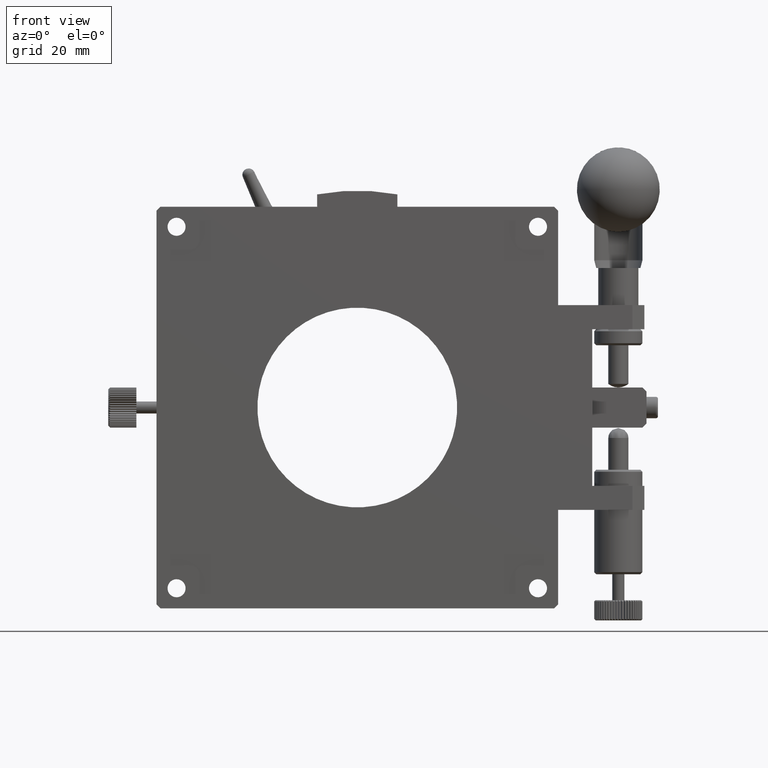
[diagram: clean part render]
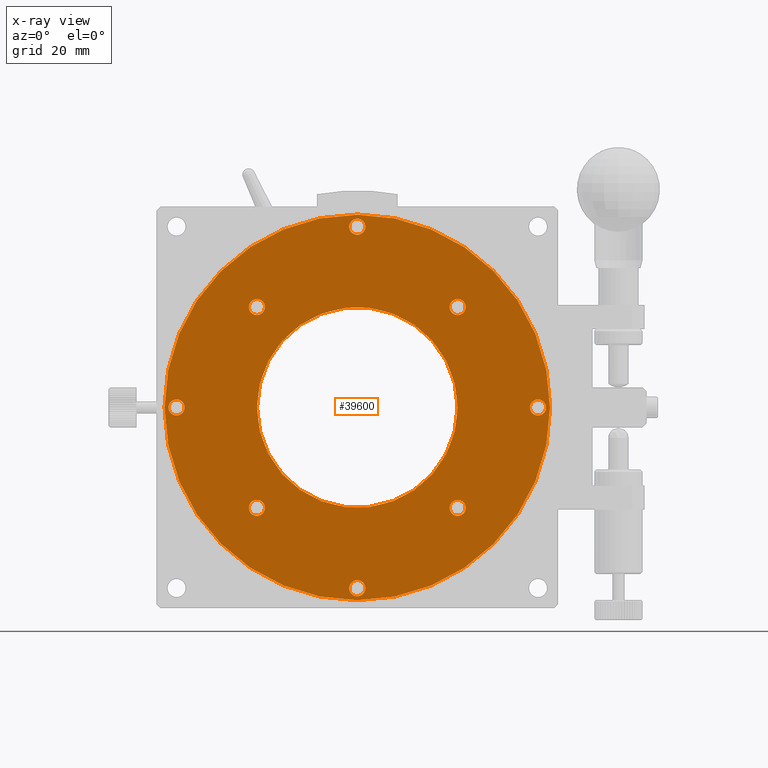
[diagram: x-ray — body ghosted, one internal face saturated and labeled with its STEP entity id]
A machine part, front view, then the same camera in x-ray: the body is ghosted and one INTERNAL B-rep face — a face not visible from any outside direction — is saturated and labeled: STEP entity #39600.
In plain terms, the highlighted planar face has unit normal (0, -1, -0).
Its self-contained STEP definition (entity closure, byte-faithful):
#254 = VERTEX_POINT ( 'NONE', #21192 ) ;
#580 = PLANE ( 'NONE',  #12101 ) ;
#1498 = DIRECTION ( 'NONE',  ( -0.000000000000000000, 1.000000000000000000, -0.000000000000000000 ) ) ;
#1528 = DIRECTION ( 'NONE',  ( -0.000000000000000000, 1.000000000000000000, -0.000000000000000000 ) ) ;
#1540 = FACE_BOUND ( 'NONE', #95973, .T. ) ;
#1689 = CARTESIAN_POINT ( 'NONE',  ( -25.00000000000000000, 8.000000000000000000, 0.000000000000000000 ) ) ;
#2006 = DIRECTION ( 'NONE',  ( -1.000000000000000000, 0.000000000000000000, 0.000000000000000000 ) ) ;
#2055 = AXIS2_PLACEMENT_3D ( 'NONE', #55066, #1498, #61448 ) ;
#2201 = DIRECTION ( 'NONE',  ( -1.000000000000000000, 0.000000000000000000, 0.000000000000000000 ) ) ;
#2276 = AXIS2_PLACEMENT_3D ( 'NONE', #71041, #86164, #2351 ) ;
#2351 = DIRECTION ( 'NONE',  ( -1.000000000000000000, 0.000000000000000000, 0.000000000000000000 ) ) ;
#2689 = EDGE_CURVE ( 'NONE', #254, #254, #23108, .T. ) ;
#2846 = AXIS2_PLACEMENT_3D ( 'NONE', #8532, #82671, #23180 ) ;
#5561 = EDGE_LOOP ( 'NONE', ( #41952 ) ) ;
#5871 = EDGE_CURVE ( 'NONE', #7067, #7067, #91822, .T. ) ;
#6229 = AXIS2_PLACEMENT_3D ( 'NONE', #46579, #91447, #2201 ) ;
#7067 = VERTEX_POINT ( 'NONE', #65128 ) ;
#8532 = CARTESIAN_POINT ( 'NONE',  ( 25.00000000000000000, 7.999999999981355359, -25.00000000000000000 ) ) ;
#9133 = EDGE_CURVE ( 'NONE', #14389, #14389, #93457, .T. ) ;
#9308 = FACE_BOUND ( 'NONE', #5561, .T. ) ;
#10585 = DIRECTION ( 'NONE',  ( -1.000000000000000000, 0.000000000000000000, 0.000000000000000000 ) ) ;
#11377 = VERTEX_POINT ( 'NONE', #41085 ) ;
#11936 = ORIENTED_EDGE ( 'NONE', *, *, #82375, .T. ) ;
#12101 = AXIS2_PLACEMENT_3D ( 'NONE', #60525, #37625, #76579 ) ;
#12200 = CIRCLE ( 'NONE', #52714, 25.00000000000000000 ) ;
#12480 = ORIENTED_EDGE ( 'NONE', *, *, #91264, .T. ) ;
#13088 = CIRCLE ( 'NONE', #2276, 2.000000000032288394 ) ;
#13144 = ORIENTED_EDGE ( 'NONE', *, *, #32230, .T. ) ;
#14389 = VERTEX_POINT ( 'NONE', #94904 ) ;
#17129 = FACE_BOUND ( 'NONE', #50714, .T. ) ;
#21192 = CARTESIAN_POINT ( 'NONE',  ( 22.99999999996771294, 7.999999999981355359, -25.00000000000000000 ) ) ;
#23108 = CIRCLE ( 'NONE', #2846, 2.000000000032288394 ) ;
#23149 = VERTEX_POINT ( 'NONE', #76264 ) ;
#23180 = DIRECTION ( 'NONE',  ( -1.000000000000000000, 0.000000000000000000, 0.000000000000000000 ) ) ;
#24428 = FACE_BOUND ( 'NONE', #25881, .T. ) ;
#24964 = DIRECTION ( 'NONE',  ( -1.000000000000000000, 0.000000000000000000, 0.000000000000000000 ) ) ;
#25881 = EDGE_LOOP ( 'NONE', ( #29991 ) ) ;
#26014 = CIRCLE ( 'NONE', #63415, 1.999999999952706276 ) ;
#29865 = EDGE_LOOP ( 'NONE', ( #54949 ) ) ;
#29991 = ORIENTED_EDGE ( 'NONE', *, *, #66042, .T. ) ;
#30020 = ORIENTED_EDGE ( 'NONE', *, *, #5871, .T. ) ;
#30592 = AXIS2_PLACEMENT_3D ( 'NONE', #91809, #78884, #24964 ) ;
#31261 = FACE_BOUND ( 'NONE', #79696, .T. ) ;
#31733 = FACE_BOUND ( 'NONE', #34600, .T. ) ;
#32230 = EDGE_CURVE ( 'NONE', #90445, #90445, #86630, .T. ) ;
#32805 = VERTEX_POINT ( 'NONE', #93308 ) ;
#33604 = ORIENTED_EDGE ( 'NONE', *, *, #69965, .T. ) ;
#34600 = EDGE_LOOP ( 'NONE', ( #82363 ) ) ;
#34743 = CARTESIAN_POINT ( 'NONE',  ( 42.99999999994952304, 8.000000000038198777, 0.000000000000000000 ) ) ;
#36694 = EDGE_CURVE ( 'NONE', #68022, #68022, #12200, .T. ) ;
#37625 = DIRECTION ( 'NONE',  ( 0.000000000000000000, -1.000000000000000000, -0.000000000000000000 ) ) ;
#39600 = ADVANCED_FACE ( 'NONE', ( #31733, #9308, #17129, #45905, #61487, #24428, #76120, #1540, #31261, #91255 ), #580, .T. ) ;
#40614 = CARTESIAN_POINT ( 'NONE',  ( -1.999999999952706276, 7.999999999981355359, 45.00000000000000000 ) ) ;
#41085 = CARTESIAN_POINT ( 'NONE',  ( -26.99999999992996891, 8.000000000038198777, 25.00000000000000000 ) ) ;
#41952 = ORIENTED_EDGE ( 'NONE', *, *, #2689, .T. ) ;
#42610 = CARTESIAN_POINT ( 'NONE',  ( -45.00000000000000000, 8.000000000038198777, 0.000000000000000000 ) ) ;
#45647 = CIRCLE ( 'NONE', #2055, 2.000000000050475180 ) ;
#45905 = FACE_BOUND ( 'NONE', #93711, .T. ) ;
#46579 = CARTESIAN_POINT ( 'NONE',  ( -25.00000000000000000, 8.000000000038198777, 25.00000000000000000 ) ) ;
#48258 = CIRCLE ( 'NONE', #6229, 1.999999999929967576 ) ;
#48906 = VERTEX_POINT ( 'NONE', #40614 ) ;
#50714 = EDGE_LOOP ( 'NONE', ( #12480 ) ) ;
#51206 = CIRCLE ( 'NONE', #79194, 48.00000000000000000 ) ;
#51438 = AXIS2_PLACEMENT_3D ( 'NONE', #83428, #1528, #2006 ) ;
#51747 = EDGE_CURVE ( 'NONE', #23149, #23149, #51206, .T. ) ;
#52714 = AXIS2_PLACEMENT_3D ( 'NONE', #53810, #68949, #84526 ) ;
#53810 = CARTESIAN_POINT ( 'NONE',  ( 0.000000000000000000, 8.000000000000000000, 0.000000000000000000 ) ) ;
#54949 = ORIENTED_EDGE ( 'NONE', *, *, #9133, .T. ) ;
#54950 = CARTESIAN_POINT ( 'NONE',  ( 0.000000000000000000, 8.000000000000000000, 0.000000000000000000 ) ) ;
#55066 = CARTESIAN_POINT ( 'NONE',  ( 45.00000000000000000, 8.000000000038198777, 0.000000000000000000 ) ) ;
#55797 = DIRECTION ( 'NONE',  ( -0.000000000000000000, 1.000000000000000000, -0.000000000000000000 ) ) ;
#56202 = VERTEX_POINT ( 'NONE', #34743 ) ;
#60525 = CARTESIAN_POINT ( 'NONE',  ( -25.00000000000000000, 8.000000000000000000, 0.000000000000000000 ) ) ;
#61448 = DIRECTION ( 'NONE',  ( -1.000000000000000000, 0.000000000000000000, 0.000000000000000000 ) ) ;
#61487 = FACE_BOUND ( 'NONE', #29865, .T. ) ;
#62079 = EDGE_LOOP ( 'NONE', ( #11936 ) ) ;
#63415 = AXIS2_PLACEMENT_3D ( 'NONE', #78690, #55797, #86051 ) ;
#65128 = CARTESIAN_POINT ( 'NONE',  ( -47.00000000002546585, 8.000000000038198777, 0.000000000000000000 ) ) ;
#66042 = EDGE_CURVE ( 'NONE', #56202, #56202, #45647, .T. ) ;
#68022 = VERTEX_POINT ( 'NONE', #1689 ) ;
#68949 = DIRECTION ( 'NONE',  ( -0.000000000000000000, 1.000000000000000000, -0.000000000000000000 ) ) ;
#69598 = DIRECTION ( 'NONE',  ( 0.000000000000000000, -1.000000000000000000, 0.000000000000000000 ) ) ;
#69965 = EDGE_CURVE ( 'NONE', #32805, #32805, #13088, .T. ) ;
#71041 = CARTESIAN_POINT ( 'NONE',  ( 25.00000000000000000, 7.999999999981355359, 25.00000000000000000 ) ) ;
#74688 = AXIS2_PLACEMENT_3D ( 'NONE', #42610, #80133, #86990 ) ;
#75095 = ORIENTED_EDGE ( 'NONE', *, *, #51747, .T. ) ;
#75342 = EDGE_LOOP ( 'NONE', ( #75095 ) ) ;
#76120 = FACE_BOUND ( 'NONE', #62079, .T. ) ;
#76264 = CARTESIAN_POINT ( 'NONE',  ( -48.00000000000000000, 8.000000000000000000, 0.000000000000000000 ) ) ;
#76579 = DIRECTION ( 'NONE',  ( -1.000000000000000000, 0.000000000000000000, -0.000000000000000000 ) ) ;
#78690 = CARTESIAN_POINT ( 'NONE',  ( 0.000000000000000000, 7.999999999981355359, 45.00000000000000000 ) ) ;
#78884 = DIRECTION ( 'NONE',  ( -0.000000000000000000, 1.000000000000000000, -0.000000000000000000 ) ) ;
#79194 = AXIS2_PLACEMENT_3D ( 'NONE', #54950, #69598, #10585 ) ;
#79696 = EDGE_LOOP ( 'NONE', ( #30020 ) ) ;
#80133 = DIRECTION ( 'NONE',  ( -0.000000000000000000, 1.000000000000000000, -0.000000000000000000 ) ) ;
#82363 = ORIENTED_EDGE ( 'NONE', *, *, #36694, .T. ) ;
#82375 = EDGE_CURVE ( 'NONE', #48906, #48906, #26014, .T. ) ;
#82671 = DIRECTION ( 'NONE',  ( -0.000000000000000000, 1.000000000000000000, -0.000000000000000000 ) ) ;
#83428 = CARTESIAN_POINT ( 'NONE',  ( -25.00000000000000000, 8.000000000038198777, -25.00000000000000000 ) ) ;
#84526 = DIRECTION ( 'NONE',  ( -1.000000000000000000, 0.000000000000000000, 0.000000000000000000 ) ) ;
#86051 = DIRECTION ( 'NONE',  ( -1.000000000000000000, 0.000000000000000000, 0.000000000000000000 ) ) ;
#86164 = DIRECTION ( 'NONE',  ( -0.000000000000000000, 1.000000000000000000, -0.000000000000000000 ) ) ;
#86630 = CIRCLE ( 'NONE', #30592, 1.999999999952706276 ) ;
#86990 = DIRECTION ( 'NONE',  ( -1.000000000000000000, 0.000000000000000000, 0.000000000000000000 ) ) ;
#90445 = VERTEX_POINT ( 'NONE', #91899 ) ;
#91255 = FACE_OUTER_BOUND ( 'NONE', #75342, .T. ) ;
#91264 = EDGE_CURVE ( 'NONE', #11377, #11377, #48258, .T. ) ;
#91447 = DIRECTION ( 'NONE',  ( -0.000000000000000000, 1.000000000000000000, -0.000000000000000000 ) ) ;
#91809 = CARTESIAN_POINT ( 'NONE',  ( 0.000000000000000000, 7.999999999981355359, -45.00000000000000000 ) ) ;
#91822 = CIRCLE ( 'NONE', #74688, 2.000000000025467628 ) ;
#91899 = CARTESIAN_POINT ( 'NONE',  ( -1.999999999952706276, 7.999999999981355359, -45.00000000000000000 ) ) ;
#93308 = CARTESIAN_POINT ( 'NONE',  ( 22.99999999996771294, 7.999999999981355359, 25.00000000000000000 ) ) ;
#93457 = CIRCLE ( 'NONE', #51438, 1.999999999929967576 ) ;
#93711 = EDGE_LOOP ( 'NONE', ( #33604 ) ) ;
#94904 = CARTESIAN_POINT ( 'NONE',  ( -26.99999999992996891, 8.000000000038198777, -25.00000000000000000 ) ) ;
#95973 = EDGE_LOOP ( 'NONE', ( #13144 ) ) ;